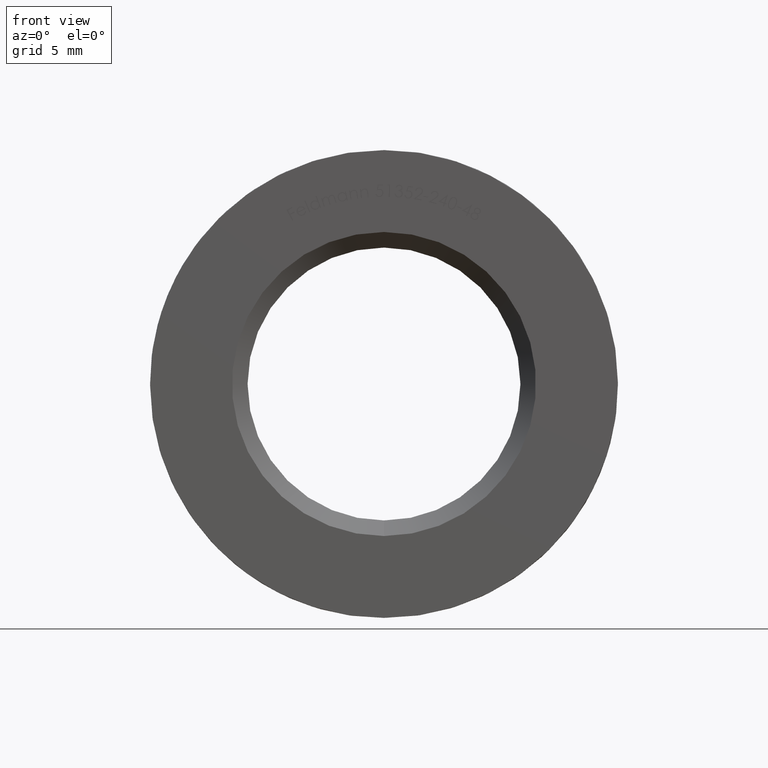
[diagram: clean part render]
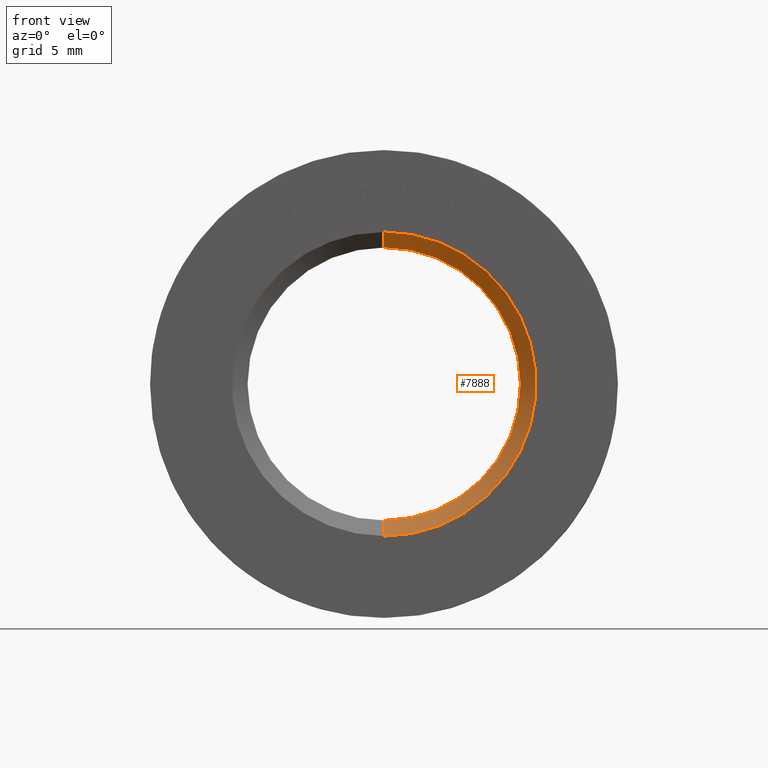
[diagram: same view with one face highlighted and labeled with its STEP entity id]
A machine part, front view. The second image highlights one B-rep face of the part: STEP entity #7888.
In plain terms, the highlighted conical surface has half-angle 45 deg.
Its self-contained STEP definition (entity closure, byte-faithful):
#25 = DIRECTION ( 'NONE',  ( 0.0000000000000000000, 0.0000000000000000000, -1.000000000000000000 ) ) ;
#192 = CARTESIAN_POINT ( 'NONE',  ( 0.0000000000000000000, 0.9999999999999904500, 0.0000000000000000000 ) ) ;
#616 = VECTOR ( 'NONE', #1605, 999.9999999999998900 ) ;
#1063 = VERTEX_POINT ( 'NONE', #13932 ) ;
#1092 = EDGE_CURVE ( 'NONE', #11868, #6006, #6975, .T. ) ;
#1161 = ORIENTED_EDGE ( 'NONE', *, *, #11137, .F. ) ;
#1504 = CIRCLE ( 'NONE', #13612, 9.749999999999980500 ) ;
#1605 = DIRECTION ( 'NONE',  ( 8.659560562354926700E-017, -0.7071067811865482400, 0.7071067811865469100 ) ) ;
#2468 = DIRECTION ( 'NONE',  ( -0.0000000000000000000, -1.000000000000000000, -0.0000000000000000000 ) ) ;
#2620 = CARTESIAN_POINT ( 'NONE',  ( 0.0000000000000000000, 0.0000000000000000000, -9.749999999999980500 ) ) ;
#2799 = LINE ( 'NONE', #13059, #616 ) ;
#2994 = EDGE_LOOP ( 'NONE', ( #1161, #7851, #8459, #10160 ) ) ;
#3110 = LINE ( 'NONE', #12325, #10506 ) ;
#6004 = VERTEX_POINT ( 'NONE', #2620 ) ;
#6006 = VERTEX_POINT ( 'NONE', #11934 ) ;
#6386 = CARTESIAN_POINT ( 'NONE',  ( 1.071565949253932900E-015, 0.9999999999999904500, -8.749999999999992900 ) ) ;
#6641 = CARTESIAN_POINT ( 'NONE',  ( 0.0000000000000000000, 0.0000000000000000000, 0.0000000000000000000 ) ) ;
#6975 = CIRCLE ( 'NONE', #13262, 8.749999999999992900 ) ;
#7014 = CARTESIAN_POINT ( 'NONE',  ( 0.0000000000000000000, 0.0000000000000000000, 0.0000000000000000000 ) ) ;
#7648 = DIRECTION ( 'NONE',  ( 0.0000000000000000000, 1.000000000000000000, 0.0000000000000000000 ) ) ;
#7807 = CONICAL_SURFACE ( 'NONE', #13696, 9.749999999999980500, 0.7853981633974473900 ) ;
#7851 = ORIENTED_EDGE ( 'NONE', *, *, #1092, .F. ) ;
#7888 = ADVANCED_FACE ( 'NONE', ( #11266 ), #7807, .F. ) ;
#8459 = ORIENTED_EDGE ( 'NONE', *, *, #9539, .T. ) ;
#8917 = DIRECTION ( 'NONE',  ( 0.0000000000000000000, 0.0000000000000000000, 1.000000000000000000 ) ) ;
#9539 = EDGE_CURVE ( 'NONE', #11868, #6004, #3110, .T. ) ;
#10160 = ORIENTED_EDGE ( 'NONE', *, *, #14414, .F. ) ;
#10506 = VECTOR ( 'NONE', #14618, 999.9999999999998900 ) ;
#10845 = DIRECTION ( 'NONE',  ( -0.0000000000000000000, -1.000000000000000000, -0.0000000000000000000 ) ) ;
#11137 = EDGE_CURVE ( 'NONE', #6006, #1063, #2799, .T. ) ;
#11266 = FACE_OUTER_BOUND ( 'NONE', #2994, .T. ) ;
#11868 = VERTEX_POINT ( 'NONE', #6386 ) ;
#11934 = CARTESIAN_POINT ( 'NONE',  ( 0.0000000000000000000, 0.9999999999999904500, 8.749999999999992900 ) ) ;
#12325 = CARTESIAN_POINT ( 'NONE',  ( 0.0000000000000000000, 0.0000000000000000000, -9.749999999999980500 ) ) ;
#13059 = CARTESIAN_POINT ( 'NONE',  ( 1.194030629168667100E-015, 0.0000000000000000000, 9.749999999999980500 ) ) ;
#13262 = AXIS2_PLACEMENT_3D ( 'NONE', #192, #10845, #14600 ) ;
#13612 = AXIS2_PLACEMENT_3D ( 'NONE', #6641, #7648, #8917 ) ;
#13696 = AXIS2_PLACEMENT_3D ( 'NONE', #7014, #2468, #25 ) ;
#13932 = CARTESIAN_POINT ( 'NONE',  ( 1.194030629168667100E-015, 0.0000000000000000000, 9.749999999999980500 ) ) ;
#14414 = EDGE_CURVE ( 'NONE', #1063, #6004, #1504, .T. ) ;
#14600 = DIRECTION ( 'NONE',  ( 0.0000000000000000000, 0.0000000000000000000, 1.000000000000000000 ) ) ;
#14618 = DIRECTION ( 'NONE',  ( 0.0000000000000000000, -0.7071067811865482400, -0.7071067811865469100 ) ) ;